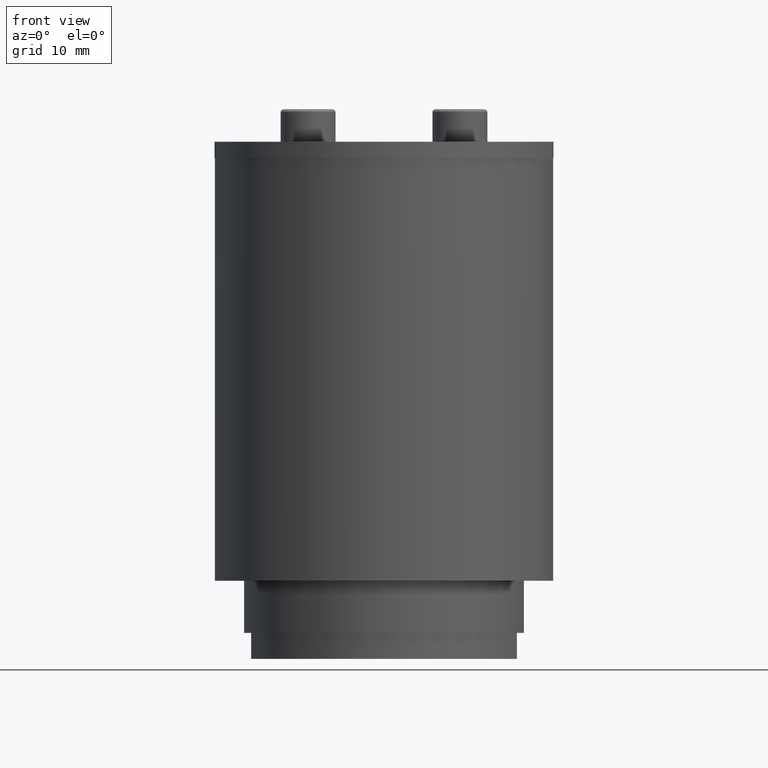
[diagram: clean part render]
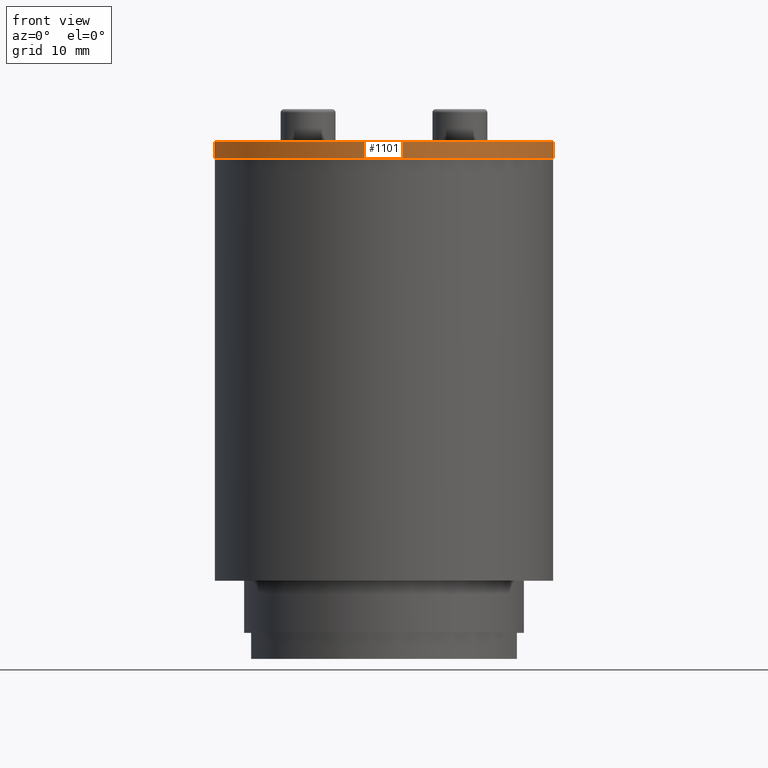
[diagram: same view with one face highlighted and labeled with its STEP entity id]
A machine part, front view. The second image highlights one B-rep face of the part: STEP entity #1101.
In plain terms, the highlighted cylindrical surface (partial cylindrical patch) has radius 26.5 mm, axis along (0, 0, 1).
Its self-contained STEP definition (entity closure, byte-faithful):
#1034=CARTESIAN_POINT('',(50.078224956256861,26.531909613042053,0.0));
#1035=VERTEX_POINT('',#1034);
#1051=CARTESIAN_POINT('',(50.078224956256861,26.531909613042053,2.5));
#1052=VERTEX_POINT('',#1051);
#1060=CARTESIAN_POINT('',(50.078224956256861,26.531909613042053,0.0));
#1061=DIRECTION('',(0.0,0.0,1.0));
#1062=VECTOR('',#1061,2.5);
#1063=LINE('',#1060,#1062);
#1064=EDGE_CURVE('',#1035,#1052,#1063,.T.);
#1069=CARTESIAN_POINT('',(24.068615700190353,31.606377698147021,0.0));
#1070=DIRECTION('',(0.0,0.0,1.0));
#1071=DIRECTION('',(0.981494688908164,0.191489361702071,0.0));
#1072=AXIS2_PLACEMENT_3D('',#1069,#1070,#1071);
#1073=CYLINDRICAL_SURFACE('',#1072,26.500000000000178);
#1074=CARTESIAN_POINT('',(-1.940993555876169,26.531909613042099,0.0));
#1075=VERTEX_POINT('',#1074);
#1076=CARTESIAN_POINT('',(24.068615700190353,31.606377698147021,0.0));
#1077=DIRECTION('',(0.0,0.0,-1.0));
#1078=DIRECTION('',(0.981494688908164,0.191489361702071,0.0));
#1079=AXIS2_PLACEMENT_3D('',#1076,#1077,#1078);
#1080=CIRCLE('',#1079,26.500000000000178);
#1081=EDGE_CURVE('',#1035,#1075,#1080,.T.);
#1082=ORIENTED_EDGE('',*,*,#1081,.F.);
#1083=ORIENTED_EDGE('',*,*,#1064,.T.);
#1084=CARTESIAN_POINT('',(-1.940993555876167,26.531909613042099,2.5));
#1085=VERTEX_POINT('',#1084);
#1086=CARTESIAN_POINT('',(24.068615700190353,31.606377698147021,2.5));
#1087=DIRECTION('',(0.0,0.0,1.0));
#1088=DIRECTION('',(0.981494688908164,0.191489361702071,0.0));
#1089=AXIS2_PLACEMENT_3D('',#1086,#1087,#1088);
#1090=CIRCLE('',#1089,26.500000000000178);
#1091=EDGE_CURVE('',#1085,#1052,#1090,.T.);
#1092=ORIENTED_EDGE('',*,*,#1091,.F.);
#1093=CARTESIAN_POINT('',(-1.940993555876169,26.531909613042099,0.0));
#1094=DIRECTION('',(0.0,0.0,1.0));
#1095=VECTOR('',#1094,2.5);
#1096=LINE('',#1093,#1095);
#1097=EDGE_CURVE('',#1075,#1085,#1096,.T.);
#1098=ORIENTED_EDGE('',*,*,#1097,.F.);
#1099=EDGE_LOOP('',(#1082,#1083,#1092,#1098));
#1100=FACE_OUTER_BOUND('',#1099,.T.);
#1101=ADVANCED_FACE('',(#1100),#1073,.T.);